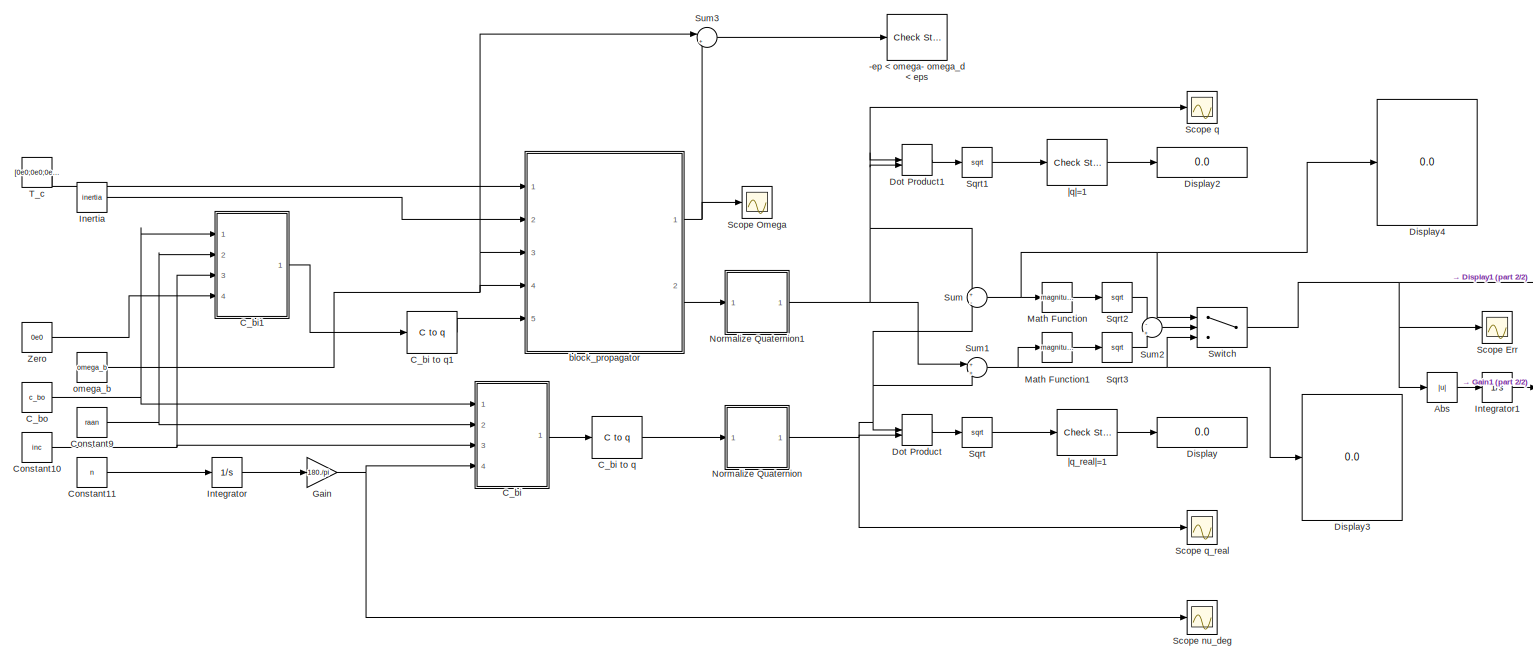
[diagram: root canvas - part 1/2, most of the canvas]
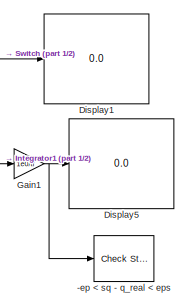
[diagram: root canvas - part 2/2, middle right region]
MODEL slx_f307eaf8d277
KIND model
CONFIG AbsTol = auto
CONFIG EnableMultiTasking = off
CONFIG FixedStep = auto
CONFIG InitFcn = data
CONFIG MaxStep = auto
CONFIG MinStep = auto
CONFIG RelTol = 1e-3
CONFIG SampleTimeConstraint = Unconstrained
CONFIG Solver = ode15s
CONFIG SolverName = ode15s
CONFIG StartTime = 0.0
CONFIG StopTime = tf
BLOCK [Reference] -ep < omega- omega_d < eps  REF=simulink/Model
Verification/Check 
Static Range
  Description = - 1e-5 <= u <= 1e-5
  Ports = [1]
  SourceBlock = simulink/Model\nVerification/Check \nStatic Range
  SourceProductBaseCode = SL
  SourceProductName = Simulink
  SourceType = Checks_SRange
BLOCK [Reference] -ep < sq - q_real < eps  REF=simulink/Model
Verification/Check 
Static Range
  Description = -1e-4 <= u <= 1e-4
  Ports = [1]
  SourceBlock = simulink/Model\nVerification/Check \nStatic Range
  SourceProductBaseCode = SL
  SourceProductName = Simulink
  SourceType = Checks_SRange
BLOCK [Abs] Abs
  SaturateOnIntegerOverflow = off
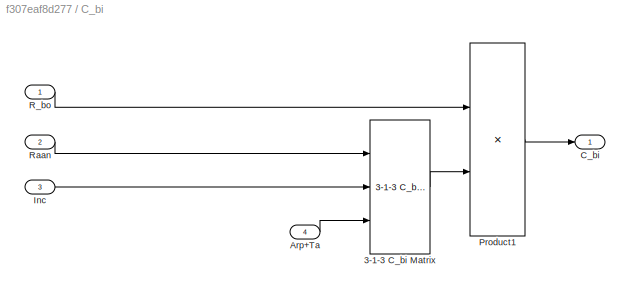
BLOCK [SubSystem] C_bi
  Ports = [4, 1]
  RequestExecContextInheritance = off
BLOCK [Reference] C_bi to q  REF=blocklib/C to q  (lib defined in mdl_0f6d77dcc548, slx_4f395834c8e9, +4 more)
  Ports = [1, 1]
  SourceBlock = blocklib/C to q
  SourceProductName = Custom Library
BLOCK [Reference] C_bi to q1  REF=blocklib/C to q  (lib defined in mdl_0f6d77dcc548, slx_4f395834c8e9, +4 more)
  Ports = [1, 1]
  SourceBlock = blocklib/C to q
  SourceProductName = Custom Library
BLOCK [Reference] C_bi/3-1-3 C_bi Matrix  REF=blocklib/3-1-3 C_bi Matrix  (lib defined in mdl_0f6d77dcc548, slx_4f395834c8e9, +4 more)
  Ports = [3, 1]
  SourceBlock = blocklib/3-1-3 C_bi Matrix
  SourceProductName = Custom Library
BLOCK [Inport] C_bi/Arp+Ta
  IconDisplay = Port number
  Port = 4
BLOCK [Outport] C_bi/C_bi
  IconDisplay = Port number
BLOCK [Inport] C_bi/Inc
  IconDisplay = Port number
  Port = 3
BLOCK [Product] C_bi/Product1
  InputSameDT = off
  Multiplication = Matrix(*)
  OutDataTypeStr = Inherit: Inherit via internal rule
  Ports = [2, 1]
  RndMeth = Floor
  SaturateOnIntegerOverflow = off
BLOCK [Inport] C_bi/R_bo
  IconDisplay = Port number
BLOCK [Inport] C_bi/Raan
  IconDisplay = Port number
  Port = 2
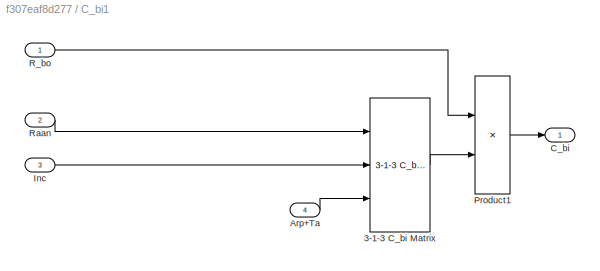
BLOCK [SubSystem] C_bi1
  Ports = [4, 1]
  RequestExecContextInheritance = off
BLOCK [Reference] C_bi1/3-1-3 C_bi Matrix  REF=blocklib/3-1-3 C_bi Matrix  (lib defined in mdl_0f6d77dcc548, slx_4f395834c8e9, +4 more)
  Ports = [3, 1]
  SourceBlock = blocklib/3-1-3 C_bi Matrix
  SourceProductName = Custom Library
BLOCK [Inport] C_bi1/Arp+Ta
  IconDisplay = Port number
  Port = 4
BLOCK [Outport] C_bi1/C_bi
  IconDisplay = Port number
BLOCK [Inport] C_bi1/Inc
  IconDisplay = Port number
  Port = 3
BLOCK [Product] C_bi1/Product1
  InputSameDT = off
  Multiplication = Matrix(*)
  OutDataTypeStr = Inherit: Inherit via internal rule
  Ports = [2, 1]
  RndMeth = Floor
  SaturateOnIntegerOverflow = off
BLOCK [Inport] C_bi1/R_bo
  IconDisplay = Port number
BLOCK [Inport] C_bi1/Raan
  IconDisplay = Port number
  Port = 2
BLOCK [Constant] C_bo
  Value = c_bo
BLOCK [Constant] Constant10
  Value = inc
BLOCK [Constant] Constant11
  Value = n
BLOCK [Constant] Constant9
  Value = raan
BLOCK [Display] Display
  Decimation = 1
  Ports = [1]
BLOCK [Display] Display1
  Decimation = 1
  Ports = [1]
BLOCK [Display] Display2
  Decimation = 10000
  Ports = [1]
BLOCK [Display] Display3
  Decimation = 1
  Ports = [1]
BLOCK [Display] Display4
  Decimation = 1
  Ports = [1]
BLOCK [Display] Display5
  Decimation = 1
  Ports = [1]
BLOCK [DotProduct] Dot Product
  OutDataTypeStr = Inherit: Inherit via internal rule
BLOCK [DotProduct] Dot Product1
  OutDataTypeStr = Inherit: Inherit via internal rule
BLOCK [Gain] Gain
  Gain = 180./pi
  OutDataTypeStr = Inherit: Inherit via internal rule
  ParamDataTypeStr = Inherit: Inherit via internal rule
  SaturateOnIntegerOverflow = off
BLOCK [Gain] Gain1
  Gain = 1e0/tf
  OutDataTypeStr = Inherit: Inherit via internal rule
  ParamDataTypeStr = Inherit: Inherit via internal rule
  SaturateOnIntegerOverflow = off
BLOCK [Constant] Inertia
  Value = inertia
BLOCK [Integrator] Integrator
  InitialCondition = 0e0
  Ports = [1, 1]
BLOCK [Integrator] Integrator1
  InitialCondition = [0e0;0e0;0e0;0e0]
  Ports = [1, 1]
BLOCK [Math] Math Function
  Operator = magnitude^2
  Ports = [1, 1]
  SignedPower = off
BLOCK [Math] Math Function1
  Operator = magnitude^2
  Ports = [1, 1]
  SignedPower = off
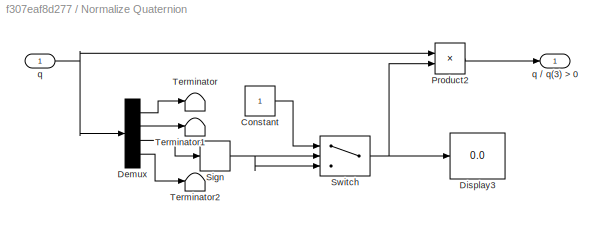
BLOCK [SubSystem] Normalize Quaternion
  Ports = [1, 1]
  RequestExecContextInheritance = off
BLOCK [Constant] Normalize Quaternion/Constant
BLOCK [Demux] Normalize Quaternion/Demux
  DisplayOption = bar
  Ports = [1, 4]
BLOCK [Display] Normalize Quaternion/Display3
  Decimation = 1
  Ports = [1]
BLOCK [Product] Normalize Quaternion/Product2
  InputSameDT = off
  OutDataTypeStr = Inherit: Inherit via internal rule
  Ports = [2, 1]
  RndMeth = Floor
  SaturateOnIntegerOverflow = off
BLOCK [Signum] Normalize Quaternion/Sign
  ZeroCross = off
BLOCK [Switch] Normalize Quaternion/Switch
  InputSameDT = off
  SaturateOnIntegerOverflow = off
BLOCK [Terminator] Normalize Quaternion/Terminator
BLOCK [Terminator] Normalize Quaternion/Terminator1
BLOCK [Terminator] Normalize Quaternion/Terminator2
BLOCK [Inport] Normalize Quaternion/q
  IconDisplay = Port number
BLOCK [Outport] Normalize Quaternion/q // q(3) > 0
  IconDisplay = Port number
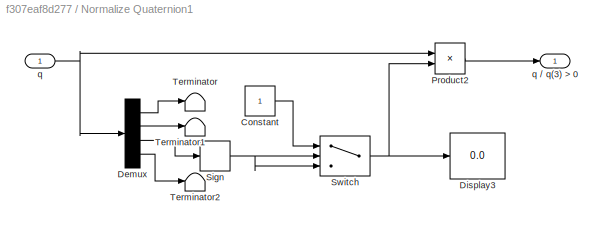
BLOCK [SubSystem] Normalize Quaternion1
  Ports = [1, 1]
  RequestExecContextInheritance = off
BLOCK [Constant] Normalize Quaternion1/Constant
BLOCK [Demux] Normalize Quaternion1/Demux
  DisplayOption = bar
  Ports = [1, 4]
BLOCK [Display] Normalize Quaternion1/Display3
  Decimation = 1
  Ports = [1]
BLOCK [Product] Normalize Quaternion1/Product2
  InputSameDT = off
  OutDataTypeStr = Inherit: Inherit via internal rule
  Ports = [2, 1]
  RndMeth = Floor
  SaturateOnIntegerOverflow = off
BLOCK [Signum] Normalize Quaternion1/Sign
  ZeroCross = off
BLOCK [Switch] Normalize Quaternion1/Switch
  InputSameDT = off
  SaturateOnIntegerOverflow = off
BLOCK [Terminator] Normalize Quaternion1/Terminator
BLOCK [Terminator] Normalize Quaternion1/Terminator1
BLOCK [Terminator] Normalize Quaternion1/Terminator2
BLOCK [Inport] Normalize Quaternion1/q
  IconDisplay = Port number
BLOCK [Outport] Normalize Quaternion1/q // q(3) > 0
  IconDisplay = Port number
BLOCK [Scope] Scope Err
  Floating = off
  NumInputPorts = 1
  Ports = [1]
  ScopeSpecificationString = Simulink.scopes.TimeScopeBlockCfg('CurrentConfiguration', extmgr.ConfigurationSet(extmgr.Configuration('Core','General UI',true),extmgr.Configuration('Core','Source UI',true),extmgr.Configuration('Sources','WiredSimulink',true,'DataLoggingVariableName','ScopeData1'),extmgr.Configuration('Visuals','Time Domain',true,'SerializedDisplays',{struct('MinYLimReal','-0.00561','MaxYLimReal','0.01623','YLab...<+1589ch>
BLOCK [Scope] Scope Omega
  Floating = off
  NumInputPorts = 1
  Ports = [1]
  ScopeSpecificationString = Simulink.scopes.TimeScopeBlockCfg('CurrentConfiguration', extmgr.ConfigurationSet(extmgr.Configuration('Core','General UI',true),extmgr.Configuration('Core','Source UI',true),extmgr.Configuration('Sources','WiredSimulink',true),extmgr.Configuration('Visuals','Time Domain',true,'SerializedDisplays',{struct('MinYLimReal','-0.00009','MaxYLimReal','0.0009','YLabelReal','','MinYLimMag','0.00000','MaxYL...<+1407ch>
BLOCK [Scope] Scope nu_deg
  Floating = off
  NumInputPorts = 1
  Ports = [1]
  ScopeSpecificationString = Simulink.scopes.TimeScopeBlockCfg('CurrentConfiguration', extmgr.ConfigurationSet(extmgr.Configuration('Core','General UI',true),extmgr.Configuration('Core','Source UI',true),extmgr.Configuration('Sources','WiredSimulink',true,'DataLoggingVariableName','ScopeData1'),extmgr.Configuration('Visuals','Time Domain',true,'SerializedDisplays',{struct('MinYLimReal','-1.36288','MaxYLimReal','12.26589','YLa...<+1578ch>
BLOCK [Scope] Scope q
  Floating = off
  NumInputPorts = 1
  Ports = [1]
  ScopeSpecificationString = Simulink.scopes.TimeScopeBlockCfg('CurrentConfiguration', extmgr.ConfigurationSet(extmgr.Configuration('Core','General UI',true),extmgr.Configuration('Core','Source UI',true),extmgr.Configuration('Sources','WiredSimulink',true,'DataLoggingVariableName','ScopeData1'),extmgr.Configuration('Visuals','Time Domain',true,'SerializedDisplays',{struct('MinYLimReal','-1.10634','MaxYLimReal','1.10637','YLab...<+1603ch>
BLOCK [Scope] Scope q_real
  Floating = off
  NumInputPorts = 1
  Ports = [1]
  ScopeSpecificationString = Simulink.scopes.TimeScopeBlockCfg('CurrentConfiguration', extmgr.ConfigurationSet(extmgr.Configuration('Core','General UI',true),extmgr.Configuration('Core','Source UI',true),extmgr.Configuration('Sources','WiredSimulink',true,'DataLoggingVariableName','ScopeData2'),extmgr.Configuration('Visuals','Time Domain',true,'SerializedDisplays',{struct('MinYLimReal','-0.82258','MaxYLimReal','0.87258','YLab...<+1668ch>
BLOCK [Sqrt] Sqrt
BLOCK [Sqrt] Sqrt1
BLOCK [Sqrt] Sqrt2
BLOCK [Sqrt] Sqrt3
BLOCK [Sum] Sum
  IconShape = round
  InputSameDT = off
  Inputs = +|-
  OutDataTypeStr = Inherit: Inherit via internal rule
  Ports = [2, 1]
  SaturateOnIntegerOverflow = off
BLOCK [Sum] Sum1
  IconShape = round
  InputSameDT = off
  Inputs = +|+
  OutDataTypeStr = Inherit: Inherit via internal rule
  Ports = [2, 1]
  SaturateOnIntegerOverflow = off
BLOCK [Sum] Sum2
  IconShape = round
  InputSameDT = off
  Inputs = -|+
  OutDataTypeStr = Inherit: Inherit via internal rule
  Ports = [2, 1]
  SaturateOnIntegerOverflow = off
BLOCK [Sum] Sum3
  IconShape = round
  InputSameDT = off
  Inputs = |+-
  OutDataTypeStr = Inherit: Inherit via internal rule
  Ports = [2, 1]
  SaturateOnIntegerOverflow = off
BLOCK [Switch] Switch
  Criteria = u2 > Threshold
  InputSameDT = off
  SaturateOnIntegerOverflow = off
BLOCK [Constant] T_c
  Value = [0e0;0e0;0e0]
BLOCK [Constant] Zero
  Value = 0e0
BLOCK [ModelReference] block_propagator
  ModelNameDialog = block_propagator
  ModelReferenceVersion = 1.56
  Ports = [5, 2]
BLOCK [Constant] omega_b
  Value = omega_b
BLOCK [Reference] |q_real|=1  REF=simulink/Model
Verification/Check 
Static Range
  Description = 1e0 - 1e-5 <= u <= 1e0 + 1e-5
  Ports = [1, 1]
  SourceBlock = simulink/Model\nVerification/Check \nStatic Range
  SourceProductBaseCode = SL
  SourceProductName = Simulink
  SourceType = Checks_SRange
BLOCK [Reference] |q|=1  REF=simulink/Model
Verification/Check 
Static Range
  Description = 1e0 - 1e-4 <= u <= 1e0 + 1e-4
  Ports = [1, 1]
  SourceBlock = simulink/Model\nVerification/Check \nStatic Range
  SourceProductBaseCode = SL
  SourceProductName = Simulink
  SourceType = Checks_SRange
LINE Abs:1 -> Integrator1:1
LINE C_bi to q1:1 -> block_propagator:5
LINE C_bi to q:1 -> Normalize Quaternion:1
LINE C_bi/3-1-3 C_bi Matrix:1 -> C_bi/Product1:2
LINE C_bi/Arp+Ta:1 -> C_bi/3-1-3 C_bi Matrix:3
LINE C_bi/Inc:1 -> C_bi/3-1-3 C_bi Matrix:2
LINE C_bi/Product1:1 -> C_bi/C_bi:1
LINE C_bi/R_bo:1 -> C_bi/Product1:1
LINE C_bi/Raan:1 -> C_bi/3-1-3 C_bi Matrix:1
LINE C_bi1/3-1-3 C_bi Matrix:1 -> C_bi1/Product1:2
LINE C_bi1/Arp+Ta:1 -> C_bi1/3-1-3 C_bi Matrix:3
LINE C_bi1/Inc:1 -> C_bi1/3-1-3 C_bi Matrix:2
LINE C_bi1/Product1:1 -> C_bi1/C_bi:1
LINE C_bi1/R_bo:1 -> C_bi1/Product1:1
LINE C_bi1/Raan:1 -> C_bi1/3-1-3 C_bi Matrix:1
LINE C_bi1:1 -> C_bi to q1:1
LINE C_bi:1 -> C_bi to q:1
NET C_bo:1 -> C_bi1:1, C_bi:1
NET Constant10:1 -> C_bi1:3, C_bi:3
LINE Constant11:1 -> Integrator:1
NET Constant9:1 -> C_bi1:2, C_bi:2
LINE Dot Product1:1 -> Sqrt1:1
LINE Dot Product:1 -> Sqrt:1
NET Gain1:1 -> -ep < sq - q_real < eps:1, Display5:1
NET Gain:1 -> C_bi:4, Scope nu_deg:1
LINE Inertia:1 -> block_propagator:2
LINE Integrator1:1 -> Gain1:1
LINE Integrator:1 -> Gain:1
LINE Math Function1:1 -> Sqrt3:1
LINE Math Function:1 -> Sqrt2:1
LINE Normalize Quaternion/Constant:1 -> Normalize Quaternion/Switch:1
LINE Normalize Quaternion/Demux:1 -> Normalize Quaternion/Terminator:1
LINE Normalize Quaternion/Demux:2 -> Normalize Quaternion/Terminator1:1
LINE Normalize Quaternion/Demux:3 -> Normalize Quaternion/Sign:1
LINE Normalize Quaternion/Demux:4 -> Normalize Quaternion/Terminator2:1
LINE Normalize Quaternion/Product2:1 -> Normalize Quaternion/q // q(3) > 0:1
NET Normalize Quaternion/Sign:1 -> Normalize Quaternion/Switch:2, Normalize Quaternion/Switch:3
NET Normalize Quaternion/Switch:1 -> Normalize Quaternion/Display3:1, Normalize Quaternion/Product2:2
NET Normalize Quaternion/q:1 -> Normalize Quaternion/Demux:1, Normalize Quaternion/Product2:1
LINE Normalize Quaternion1/Constant:1 -> Normalize Quaternion1/Switch:1
LINE Normalize Quaternion1/Demux:1 -> Normalize Quaternion1/Terminator:1
LINE Normalize Quaternion1/Demux:2 -> Normalize Quaternion1/Terminator1:1
LINE Normalize Quaternion1/Demux:3 -> Normalize Quaternion1/Sign:1
LINE Normalize Quaternion1/Demux:4 -> Normalize Quaternion1/Terminator2:1
LINE Normalize Quaternion1/Product2:1 -> Normalize Quaternion1/q // q(3) > 0:1
NET Normalize Quaternion1/Sign:1 -> Normalize Quaternion1/Switch:2, Normalize Quaternion1/Switch:3
NET Normalize Quaternion1/Switch:1 -> Normalize Quaternion1/Display3:1, Normalize Quaternion1/Product2:2
NET Normalize Quaternion1/q:1 -> Normalize Quaternion1/Demux:1, Normalize Quaternion1/Product2:1
NET Normalize Quaternion1:1 -> Dot Product1:1, Dot Product1:2, Scope q:1, Sum1:1, Sum:1
NET Normalize Quaternion:1 -> Dot Product:1, Dot Product:2, Scope q_real:1, Sum1:2, Sum:2
LINE Sqrt1:1 -> |q|=1:1
LINE Sqrt2:1 -> Sum2:1
LINE Sqrt3:1 -> Sum2:2
LINE Sqrt:1 -> |q_real|=1:1
NET Sum1:1 -> Display3:1, Math Function1:1, Switch:3
LINE Sum2:1 -> Switch:2
LINE Sum3:1 -> -ep < omega- omega_d < eps:1
NET Sum:1 -> Display4:1, Math Function:1, Switch:1
NET Switch:1 -> Abs:1, Display1:1, Scope Err:1
LINE T_c:1 -> block_propagator:1
LINE Zero:1 -> C_bi1:4
NET block_propagator:1 -> Scope Omega:1, Sum3:2
LINE block_propagator:2 -> Normalize Quaternion1:1
NET omega_b:1 -> Sum3:1, block_propagator:3, block_propagator:4
LINE |q_real|=1:1 -> Display:1
LINE |q|=1:1 -> Display2:1
note: NET lines group one-source signal fan-out (src -> all destinations, sorted); 1:1 wires keep LINE
